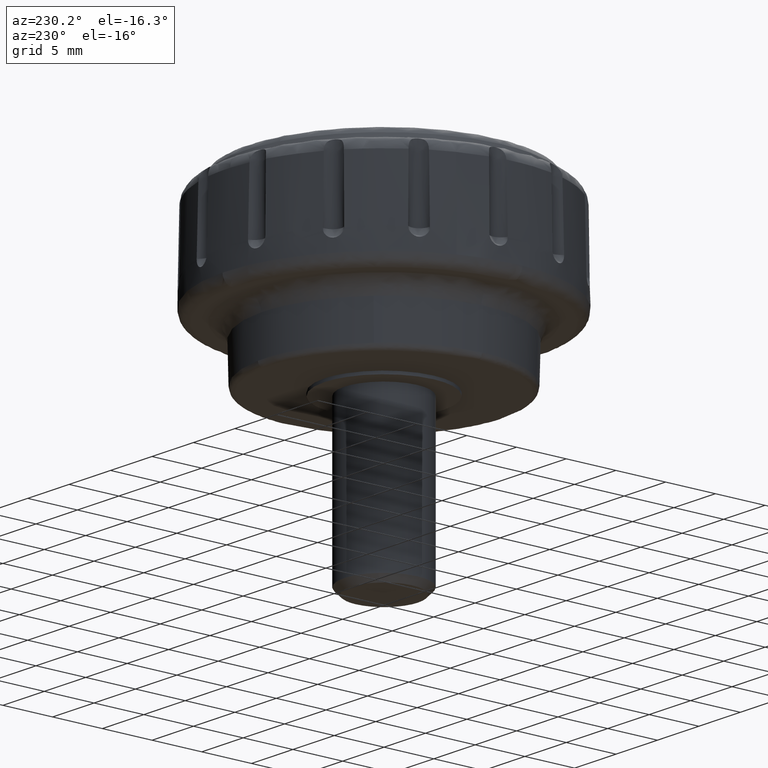
[diagram: clean part render]
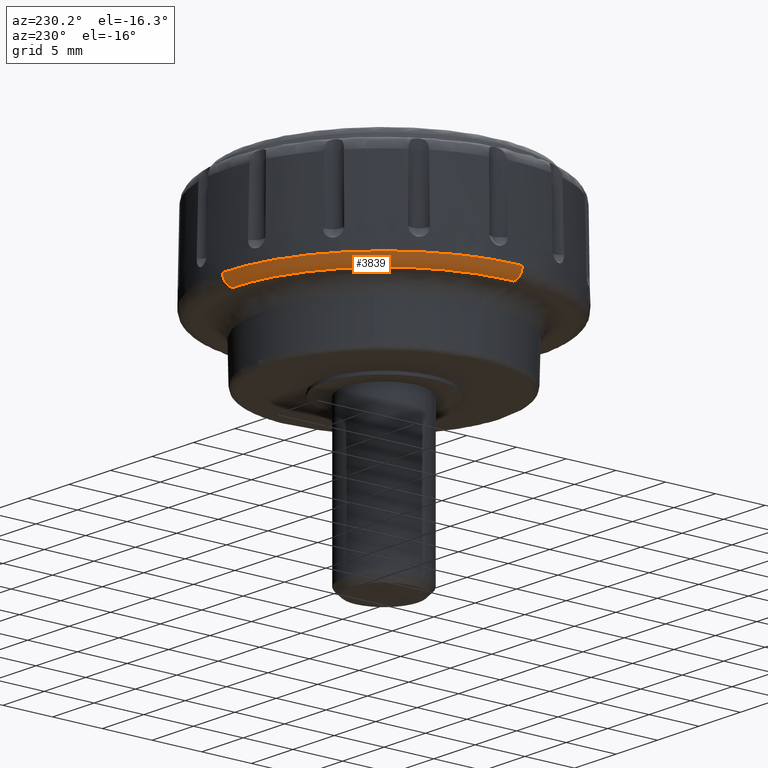
[diagram: same view with one face highlighted and labeled with its STEP entity id]
A machine part, auxiliary view. The second image highlights one B-rep face of the part: STEP entity #3839.
In plain terms, the highlighted face is a freeform B-spline surface patch.
Its self-contained STEP definition (entity closure, byte-faithful):
#2000=CARTESIAN_POINT('',(-15.090495837670669,5.255117644719157,7.020248457151402));
#2001=VERTEX_POINT('',#2000);
#2002=CARTESIAN_POINT('',(0.311967356578948,15.976295025269760,7.020248025336921));
#2003=VERTEX_POINT('',#2002);
#2004=CARTESIAN_POINT('',(-15.090495837670669,5.255117644719157,7.020248457151402));
#2005=CARTESIAN_POINT('',(-14.772796356107129,6.167717485666166,7.020248448636456));
#2006=CARTESIAN_POINT('',(-14.111887728855841,7.624469030706870,7.020248430672686));
#2007=CARTESIAN_POINT('',(-13.001472589233650,9.336516996821787,7.020248400073816));
#2008=CARTESIAN_POINT('',(-11.856832311906929,10.764028787795320,7.020248368341139));
#2009=CARTESIAN_POINT('',(-10.668098928693651,11.945056868345590,7.020248335214681));
#2010=CARTESIAN_POINT('',(-9.209701806422318,13.093154495233120,7.020248294403361));
#2011=CARTESIAN_POINT('',(-7.639868188474646,14.086069439701451,7.020248250335789));
#2012=CARTESIAN_POINT('',(-6.000774453261035,14.845769060514160,7.020248204167408));
#2013=CARTESIAN_POINT('',(-4.191881620644669,15.452649387509810,7.020248153084097));
#2014=CARTESIAN_POINT('',(-2.197368646626697,15.889953810532150,7.020248096628525));
#2015=CARTESIAN_POINT('',(-0.575825835407164,15.993691656326620,7.020248050586776));
#2016=CARTESIAN_POINT('',(0.311967356578948,15.976295025269760,7.020248025336921));
#2017=B_SPLINE_CURVE_WITH_KNOTS('',3,(#2004,#2005,#2006,#2007,#2008,#2009,#2010,#2011,#2012,#2013,#2014,#2015,#2016),.UNSPECIFIED.,.F.,.U.,(4,1,1,1,1,1,1,1,1,1,4),(9.470718E-009,2.898937506332750,4.779330738673217,6.111276245479834,8.383419629077334,9.793721519733657,11.674101489221369,13.946244181845451,15.199839542260641,17.393632873564929,20.057520203524479),.UNSPECIFIED.);
#2018=EDGE_CURVE('',#2001,#2003,#2017,.T.);
#2960=CARTESIAN_POINT('',(-15.979340611109500,0.0,7.020248025610500));
#2961=VERTEX_POINT('',#2960);
#2962=CARTESIAN_POINT('',(-15.979340611109500,0.0,7.020248025610500));
#2963=CARTESIAN_POINT('',(-15.979372112348750,0.753016288802771,7.020248087450520));
#2964=CARTESIAN_POINT('',(-15.852939055632460,2.537935325192834,7.020248234029967));
#2965=CARTESIAN_POINT('',(-15.430003315854201,4.280643568103054,7.020248377134339));
#2966=CARTESIAN_POINT('',(-15.090495837670669,5.255117644719157,7.020248457151402));
#2967=B_SPLINE_CURVE_WITH_KNOTS('',3,(#2962,#2963,#2964,#2965,#2966),.UNSPECIFIED.,.F.,.U.,(4,1,4),(6.694885E-010,2.259049522117079,5.354782712620285),.UNSPECIFIED.);
#2968=EDGE_CURVE('',#2961,#2001,#2967,.T.);
#2970=CARTESIAN_POINT('',(-15.967986852425190,-0.602264266580156,7.020248025347773));
#2971=VERTEX_POINT('',#2970);
#2972=CARTESIAN_POINT('',(-15.967986852425190,-0.602264266580156,7.020248025347773));
#2973=CARTESIAN_POINT('',(-15.979340611109500,0.0,7.020248025610500));
#2974=QUASI_UNIFORM_CURVE('',1,(#2972,#2973),.UNSPECIFIED.,.F.,.U.);
#2975=EDGE_CURVE('',#2971,#2961,#2974,.T.);
#3687=CARTESIAN_POINT('',(0.292448189451121,14.976690524639290,6.000003504426930));
#3688=VERTEX_POINT('',#3687);
#3711=CARTESIAN_POINT('',(0.311967356578948,15.976295025269760,7.020248025336921));
#3712=CARTESIAN_POINT('',(0.312022782509599,15.979133466601770,6.887662594074038));
#3713=CARTESIAN_POINT('',(0.311314446563863,15.942858568525120,6.688131664853502));
#3714=CARTESIAN_POINT('',(0.308925226577766,15.820503191647431,6.451393540849765));
#3715=CARTESIAN_POINT('',(0.306281129318156,15.685095184570470,6.282458300156047));
#3716=CARTESIAN_POINT('',(0.302961897067508,15.515112547763049,6.147421523809465));
#3717=CARTESIAN_POINT('',(0.298271295831055,15.274900141317330,6.032113033218721));
#3718=CARTESIAN_POINT('',(0.294713422660319,15.092696361207389,5.999908302980552));
#3719=CARTESIAN_POINT('',(0.292448189451121,14.976690524639290,6.000003504426930));
#3720=B_SPLINE_CURVE_WITH_KNOTS('',3,(#3711,#3712,#3713,#3714,#3715,#3716,#3717,#3718,#3719),.UNSPECIFIED.,.F.,.U.,(4,1,1,1,1,1,4),(0.000000015518591,0.397770809028148,0.596661175533829,0.795541602537736,1.044143481468248,1.243035877663325,1.591083189557135),.UNSPECIFIED.);
#3721=EDGE_CURVE('',#2003,#3688,#3720,.T.);
#3727=CARTESIAN_POINT('',(-14.968902176012220,-0.564581808216597,6.000003504426930));
#3728=VERTEX_POINT('',#3727);
#3729=CARTESIAN_POINT('',(-15.967986852425190,-0.602264266580156,7.020248025347773));
#3730=CARTESIAN_POINT('',(-15.970047034806431,-0.602341970440948,6.920824741691323));
#3731=CARTESIAN_POINT('',(-15.948433515482460,-0.601526773729890,6.754649934868296));
#3732=CARTESIAN_POINT('',(-15.850295268675090,-0.597825295279895,6.506906100446085));
#3733=CARTESIAN_POINT('',(-15.712916775322540,-0.592643793172903,6.316801215582322));
#3734=CARTESIAN_POINT('',(-15.534080199719780,-0.585898617340393,6.167311800641250));
#3735=CARTESIAN_POINT('',(-15.300038925720539,-0.577071286914020,6.040162323999155));
#3736=CARTESIAN_POINT('',(-15.101423414649821,-0.569580109336506,5.999849430483251));
#3737=CARTESIAN_POINT('',(-14.968902176012220,-0.564581808216597,6.000003504426930));
#3738=B_SPLINE_CURVE_WITH_KNOTS('',3,(#3729,#3730,#3731,#3732,#3733,#3734,#3735,#3736,#3737),.UNSPECIFIED.,.F.,.U.,(4,1,1,1,1,1,4),(0.000000015517366,0.298324248355551,0.497217370558043,0.795541603396364,0.994422030615223,1.193312397335882,1.591083191275297),.UNSPECIFIED.);
#3739=EDGE_CURVE('',#2971,#3728,#3738,.T.);
#3783=CARTESIAN_POINT('',(-15.964094164818805,-0.602117446151123,7.090468858253721));
#3784=CARTESIAN_POINT('',(-16.566211610969930,15.361976718667684,7.090468858253720));
#3785=CARTESIAN_POINT('',(-0.602117446151124,15.964094164818805,7.090468858253721));
#3786=CARTESIAN_POINT('',(-0.145232370678017,15.981326490811641,7.090468858253722));
#3787=CARTESIAN_POINT('',(0.311890423430412,15.972400329503833,7.090468858253724));
#3788=CARTESIAN_POINT('',(-16.070338060978244,-0.606124645229517,5.920037497864023));
#3789=CARTESIAN_POINT('',(-16.676462706207754,15.464213415748723,5.920037497864023));
#3790=CARTESIAN_POINT('',(-0.606124645229519,16.070338060978244,5.920037497864023));
#3791=CARTESIAN_POINT('',(-0.146198918027963,16.087685071176420,5.920037497864021));
#3792=CARTESIAN_POINT('',(0.313966109868862,16.078699504671835,5.920037497864021));
#3793=CARTESIAN_POINT('',(-14.898814915495590,-0.561938328287121,6.002466142719822));
#3794=CARTESIAN_POINT('',(-15.460753243782708,14.336876587208467,6.002466142719823));
#3795=CARTESIAN_POINT('',(-0.561938328287122,14.898814915495590,6.002466142719822));
#3796=CARTESIAN_POINT('',(-0.135541057834582,14.914897333506904,6.002466142719820));
#3797=CARTESIAN_POINT('',(0.291078068359540,14.906566812284845,6.002466142719825));
#3805=(BOUNDED_SURFACE()B_SPLINE_SURFACE(2,2,((#3783,#3788,#3793),(#3784,#3789,#3794),(#3785,#3790,#3795),(#3786,#3791,#3796),(#3787,#3792,#3797)),.UNSPECIFIED.,.F.,.F.,.U.)B_SPLINE_SURFACE_WITH_KNOTS((3,2,3),(3,3),(0.0,26.468984193722012,27.527742551759271),(0.0,1.848518065123705),.UNSPECIFIED.)GEOMETRIC_REPRESENTATION_ITEM()RATIONAL_B_SPLINE_SURFACE(((0.914002805561081,0.592957895519388,0.916006383480639),(0.646297581835770,0.419284548879863,0.647714325369325),(0.914002805561081,0.592957895519388,0.916006383480639),(0.903294606824212,0.586010968278919,0.905274711390716),(0.893443063169322,0.579619794687680,0.895401572249226)))REPRESENTATION_ITEM('')SURFACE());
#3806=CARTESIAN_POINT('',(-14.979545552428940,0.0,6.000003504426930));
#3807=VERTEX_POINT('',#3806);
#3808=CARTESIAN_POINT('',(-14.979545552428940,0.0,6.000003504426930));
#3809=CARTESIAN_POINT('',(-14.979569239806320,0.651388166801556,6.000003504426928));
#3810=CARTESIAN_POINT('',(-14.912668014141170,1.674992585877825,6.000003504426920));
#3811=CARTESIAN_POINT('',(-14.648382269350380,3.235823296490927,6.000003504426913));
#3812=CARTESIAN_POINT('',(-14.207650651911040,4.886703719034797,6.000003504426981));
#3813=CARTESIAN_POINT('',(-13.466307785917291,6.667516318515721,6.000003504426836));
#3814=CARTESIAN_POINT('',(-12.380301389350700,8.516150803365990,6.000003504426990));
#3815=CARTESIAN_POINT('',(-11.301388049650321,9.884161012834021,6.000003504426995));
#3816=CARTESIAN_POINT('',(-10.119276231849300,11.072504699671841,6.000003504426867));
#3817=CARTESIAN_POINT('',(-8.858032756799355,12.130563140066300,6.000003504427010));
#3818=CARTESIAN_POINT('',(-7.104208532861098,13.256302262047130,6.000003504426861));
#3819=CARTESIAN_POINT('',(-5.224911917034528,14.085035227215601,6.000003504426977));
#3820=CARTESIAN_POINT('',(-3.436572482752557,14.608669844946800,6.000003504426913));
#3821=CARTESIAN_POINT('',(-1.694129316387782,14.924433759508251,6.000003504426942));
#3822=CARTESIAN_POINT('',(-0.420842811415767,14.990653483826829,6.000003504426930));
#3823=CARTESIAN_POINT('',(0.292448189451121,14.976690524639290,6.000003504426930));
#3824=B_SPLINE_CURVE_WITH_KNOTS('',3,(#3808,#3809,#3810,#3811,#3812,#3813,#3814,#3815,#3816,#3817,#3818,#3819,#3820,#3821,#3822,#3823),.UNSPECIFIED.,.F.,.U.,(4,1,1,1,1,1,1,1,1,1,1,1,1,4),(4.465996E-009,1.954163622617301,3.070839439608402,4.745849877976802,7.072254229823916,8.840322207958387,11.166723443529740,12.283375865078071,13.865333910990300,16.098672503827590,18.518133590572528,20.007032010144250,21.682038691109700,23.822320206890751),.UNSPECIFIED.);
#3825=EDGE_CURVE('',#3807,#3688,#3824,.T.);
#3826=ORIENTED_EDGE('',*,*,#3825,.F.);
#3827=CARTESIAN_POINT('',(-14.968902176012220,-0.564581808216597,6.000003504426930));
#3828=CARTESIAN_POINT('',(-14.979545552428940,0.0,6.000003504426930));
#3829=QUASI_UNIFORM_CURVE('',1,(#3827,#3828),.UNSPECIFIED.,.F.,.U.);
#3830=EDGE_CURVE('',#3728,#3807,#3829,.T.);
#3831=ORIENTED_EDGE('',*,*,#3830,.F.);
#3832=ORIENTED_EDGE('',*,*,#3739,.F.);
#3833=ORIENTED_EDGE('',*,*,#2975,.T.);
#3834=ORIENTED_EDGE('',*,*,#2968,.T.);
#3835=ORIENTED_EDGE('',*,*,#2018,.T.);
#3836=ORIENTED_EDGE('',*,*,#3721,.T.);
#3837=EDGE_LOOP('',(#3826,#3831,#3832,#3833,#3834,#3835,#3836));
#3838=FACE_OUTER_BOUND('',#3837,.T.);
#3839=ADVANCED_FACE('',(#3838),#3805,.T.);